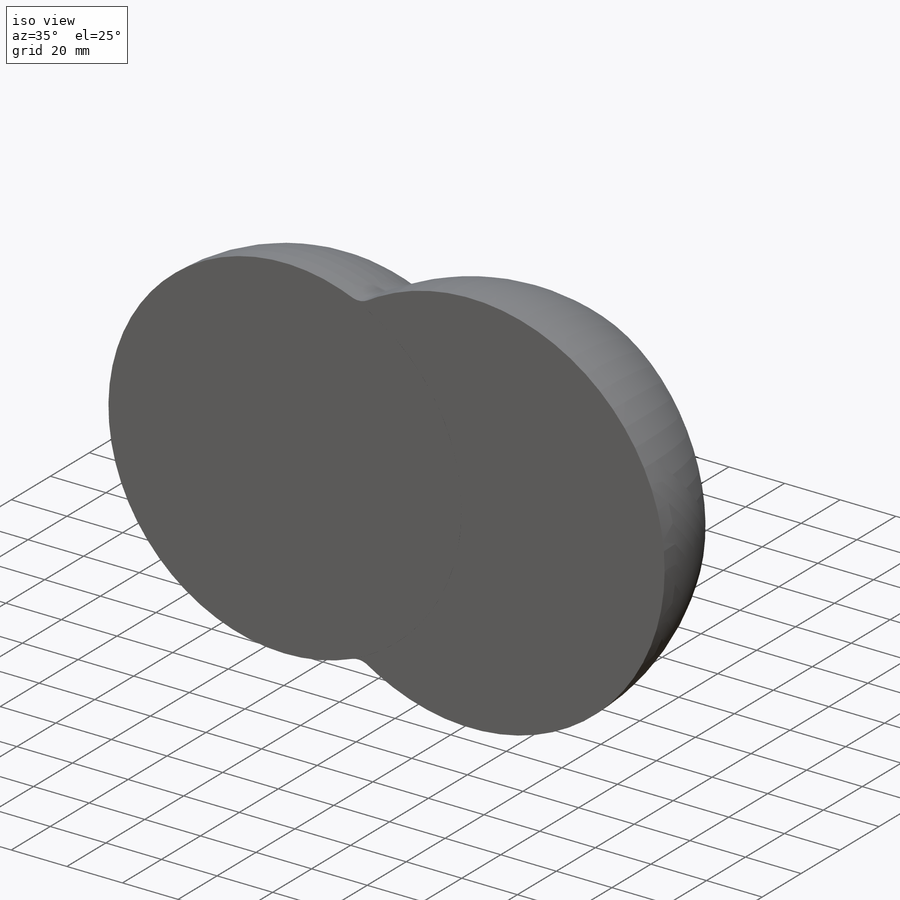
[diagram: iso view]
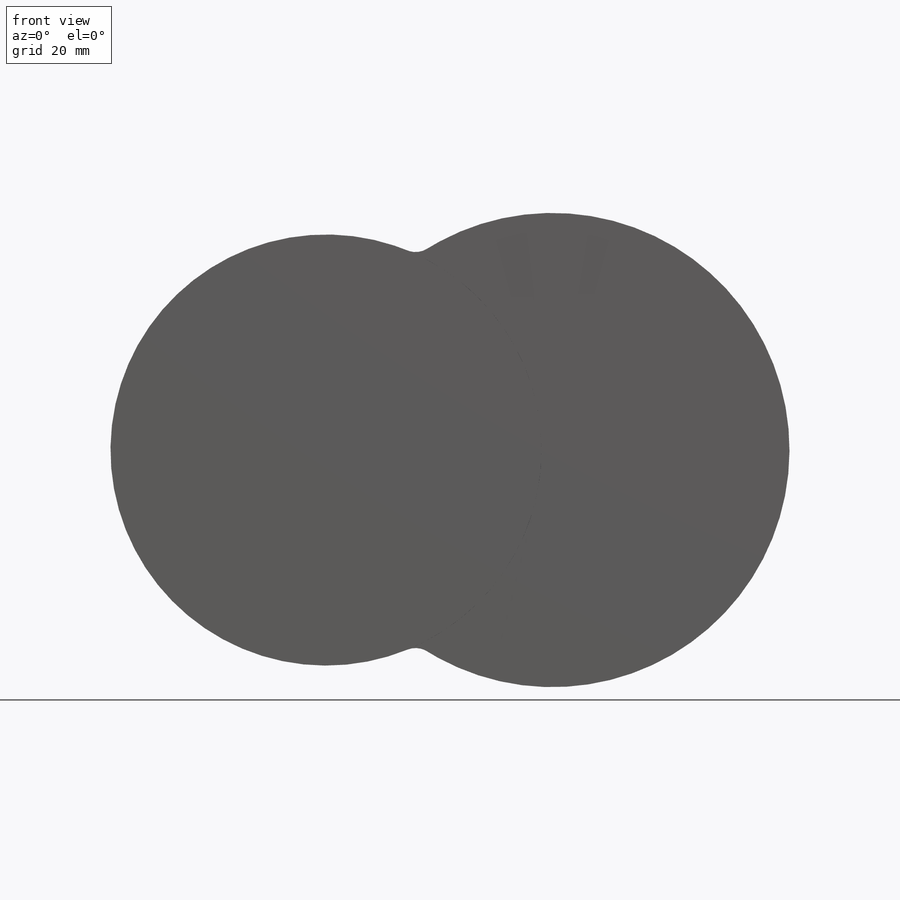
[diagram: front view]
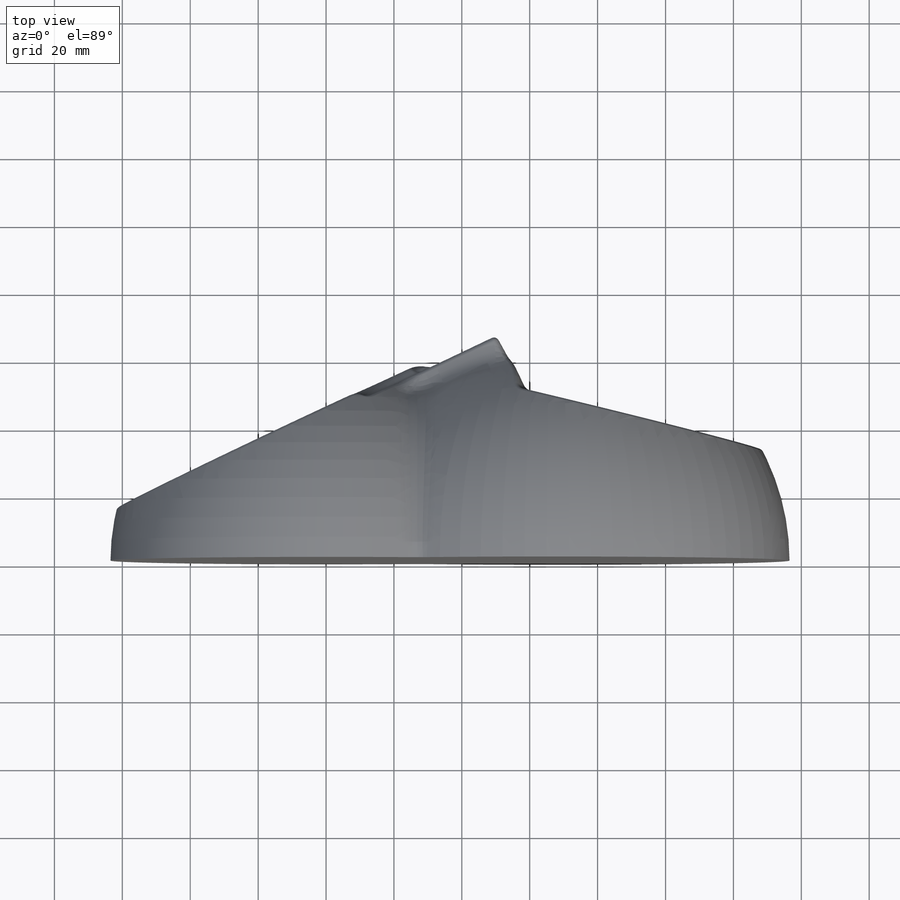
[diagram: top view]
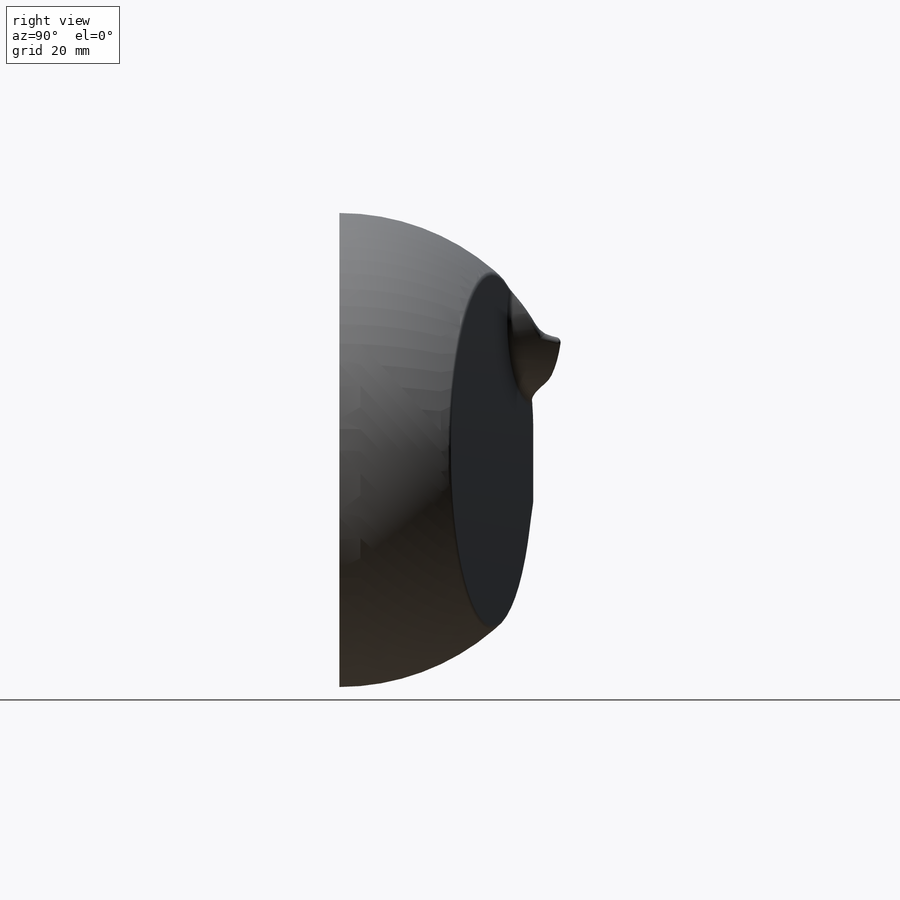
[diagram: right view]
SOLIDWORKS PART (.sldprt)
format: sldprt  version: not decoded by parser v0  size: 615,936 bytes
history: native  units: mm
features: fillet x14, sketch x5, revolve x2, cut_extrude x2, material x1, extrude x1 (+11 scaffold rows collapsed)
feature tree (36):
  scaffold x11  (default folders/planes/origin — collapsed)
  material  "Material <not specified>"
  sketch  "Sketch3"  dims[c1.D1=~96.472225mm c1.D3=63.5mm c2.D1=~48.236112mm c3.D1=90.0deg c3.D2=0.0mm]
  revolve  "Revolve2"  Angle=360deg
  sketch  "Sketch19"  dims[D2=69.85mm D1=66.675mm]
  revolve  "Revolve7"  Angle=360deg
  sketch  "Sketch20"
  cut_extrude  "Cut-Extrude9"  [1 undecoded]
  sketch  "Sketch22"  dims[c1.D1=44.45mm c1.D3=44.45mm c1.D2=38.1mm c2.D3=38.1mm c2.D2=~52.299568mm]
  extrude  "Boss-Extrude1"  Depth=0.0254mm
  sketch  "Sketch23"
  cut_extrude  "Cut-Extrude10"  Depth=2.54mm
  fillet  "Fillet11"  Radius=3.175mm
  fillet  "Fillet18"  Radius=2.38125mm
  fillet  "Fillet19"  Radius=4.7625mm
  fillet  "Fillet23"  Radius=2.37998mm
  fillet  "Fillet26"  Radius=6.35mm
  fillet  "Fillet29"  Radius=1.9812mm
  fillet  "Fillet32"  Radius=1.778mm
  fillet  "Fillet33"  Radius=1.9812mm
  fillet  "Fillet34"  Radius=3.175mm
  fillet  "Fillet35"  Radius=3.175mm
  fillet  "Fillet36"  Radius=3.175mm
  fillet  "Fillet37"  Radius=1.5875mm
  fillet  "Fillet39"  Radius=1.5875mm
  fillet  "Fillet41"  Radius=9.525mm
decode coverage: 21 of 24 modeling features carry decoded parameters
note: ~ marks probable driven/reference dimensions
note: 1 parameter value undecoded
note: suppression state not decoded; provenance and decode notes live in map.json
